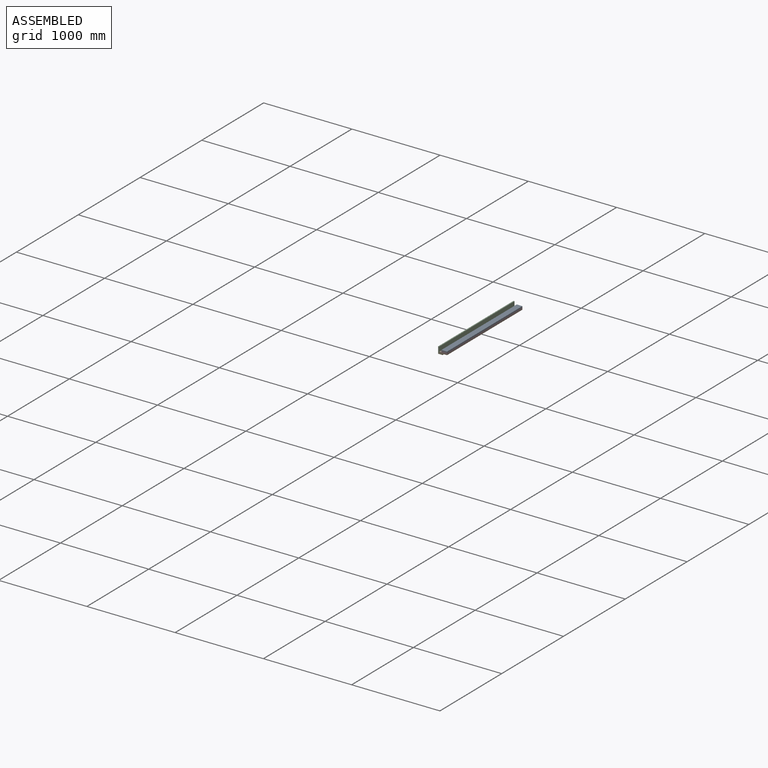
[diagram: assembled view]
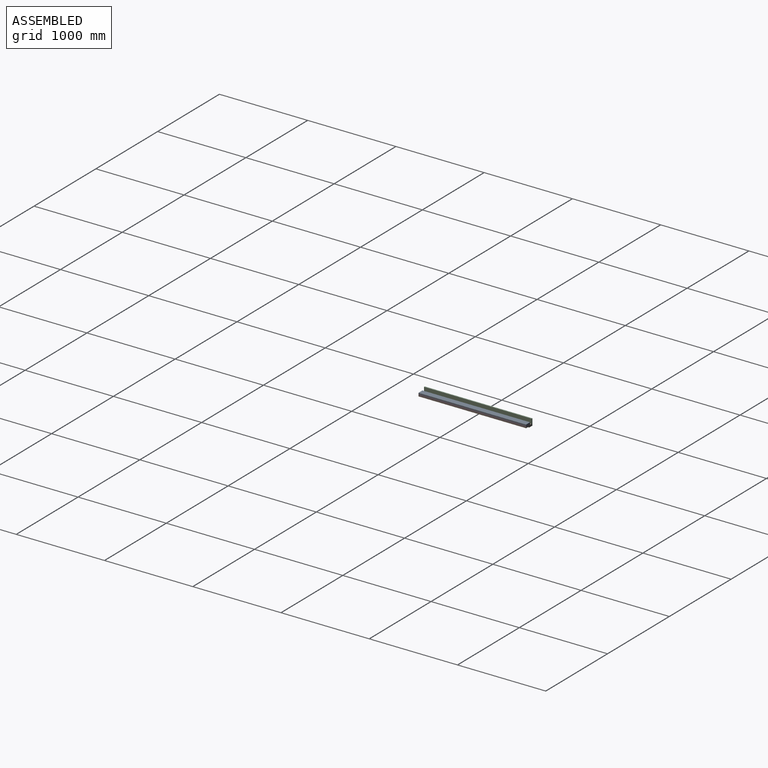
[diagram: assembled view, second angle]
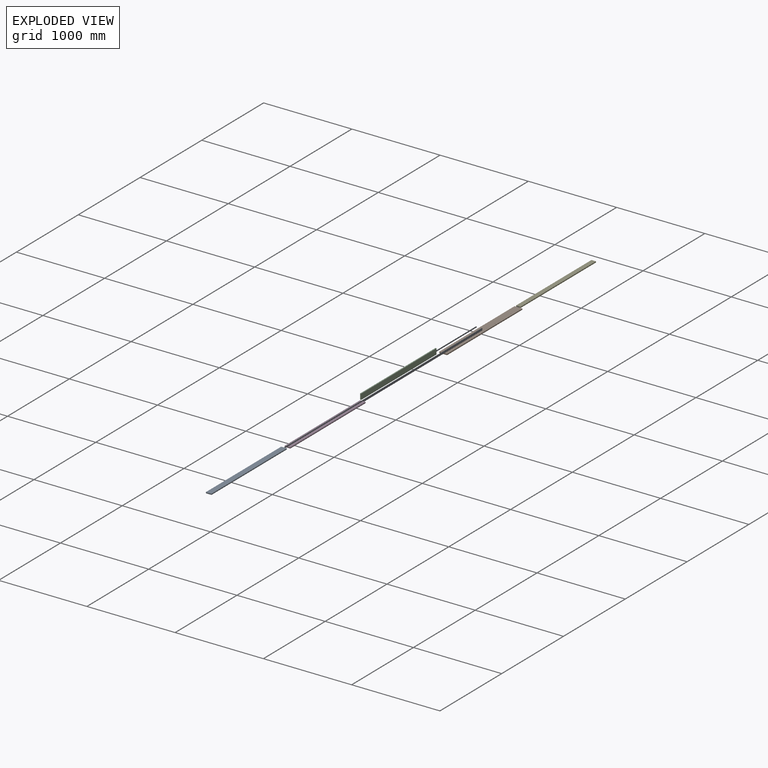
[diagram: exploded view]
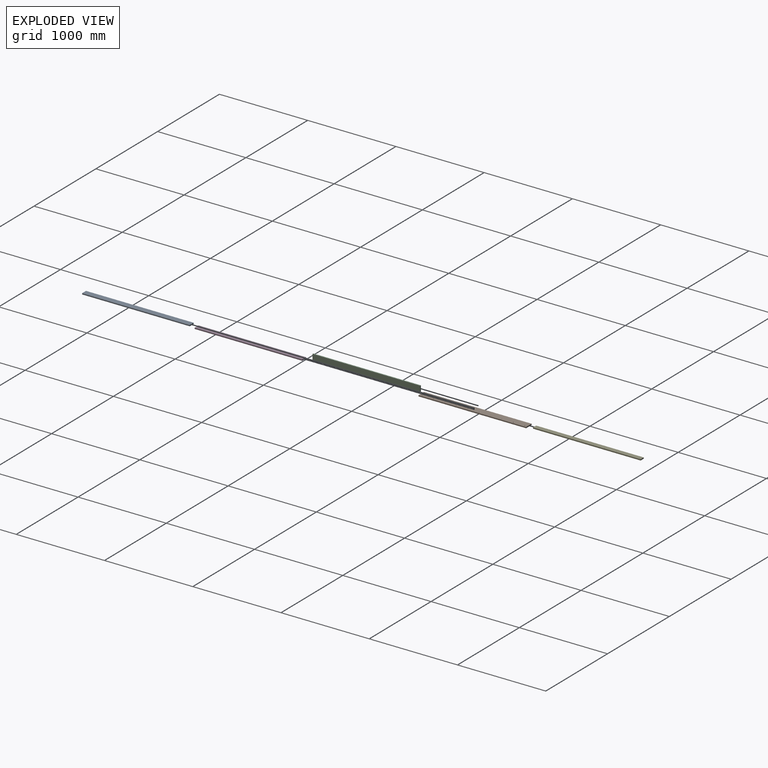
[diagram: exploded view, second angle]
ASSEMBLY  parts=5 mates=4
PART A: 6 faces, bbox 63.5x1219.2x12.3 mm
  f0: plane 1219.2x63.5mm, normal (0,0,1), area 77419.2mm2, adj f1,f3,f4,f5
  f1: plane 1219.2x12.29mm, normal (-1,0,0), area 14988.4mm2, adj f0,f2,f4,f5
  f2: plane 1219.2x63.5mm, normal (0,0,-1), area 77419.2mm2, adj f1,f3,f4,f5
  f3: plane 1219.2x12.29mm, normal (1,0,0), area 14988.4mm2, adj f0,f2,f4,f5
  f4: plane 63.5x12.29mm, normal (0,-1,0), area 780.6mm2, adj f0,f1,f2,f3
  f5: plane 63.5x12.29mm, normal (0,1,0), area 780.6mm2, adj f0,f1,f2,f3
PART B: 36 faces, bbox 88.9x1219.2x12.3 mm
  f0: plane 1219.2x88.9mm, normal (0,0,1), area 108070.2mm2, adj f1,f3,f4,f5,f6,f9,f12,f15
  f1: plane 1219.2x12.29mm, normal (-1,0,0), area 14988.4mm2, adj f0,f2,f4,f5
  f2: plane 1219.2x88.9mm, normal (0,0,-1), area 106956.8mm2, adj f1,f3,f4,f5,f8,f11,f14,f17
  f3: plane 1219.2x12.29mm, normal (1,0,0), area 14988.4mm2, adj f0,f2,f4,f5
  f4: plane 88.9x12.29mm, normal (0,-1,0), area 1092.9mm2, adj f0,f1,f2,f3
  f5: plane 88.9x12.29mm, normal (0,1,0), area 1092.9mm2, adj f0,f1,f2,f3
  f6: cylinder r=3.17mm len=9.12mm, axis (0,0,-1), area 181.9mm2, adj f0,f7
  f7: plane 13.49x13.49mm, normal (0,0,-1), area 111.3mm2, adj f6,f8
  f8: cylinder r=6.75mm len=13.49mm, axis (0,0,-1), area 134.6mm2, adj f2,f7
  f9: cylinder r=3.17mm len=9.12mm, axis (0,0,-1), area 181.9mm2, adj f0,f10
  f10: plane 13.49x13.49mm, normal (0,0,-1), area 111.3mm2, adj f9,f11
  f11: cylinder r=6.75mm len=13.49mm, axis (0,0,-1), area 134.6mm2, adj f2,f10
  f12: cylinder r=3.17mm len=9.12mm, axis (0,0,-1), area 181.9mm2, adj f0,f13
  f13: plane 13.49x13.49mm, normal (0,0,-1), area 111.3mm2, adj f12,f14
  f14: cylinder r=6.75mm len=13.49mm, axis (0,0,-1), area 134.6mm2, adj f2,f13
  f15: cylinder r=3.17mm len=9.12mm, axis (0,0,-1), area 181.9mm2, adj f0,f16
  f16: plane 13.49x13.49mm, normal (0,0,-1), area 111.3mm2, adj f15,f17
  f17: cylinder r=6.75mm len=13.49mm, axis (0,0,-1), area 134.6mm2, adj f2,f16
  f18: cylinder r=3.17mm len=9.12mm, axis (0,0,-1), area 181.9mm2, adj f0,f19
  f19: plane 13.49x13.49mm, normal (0,0,-1), area 111.3mm2, adj f18,f20
  f20: cylinder r=6.75mm len=13.49mm, axis (0,0,-1), area 134.6mm2, adj f2,f19
  f21: cylinder r=3.17mm len=9.12mm, axis (0,0,-1), area 181.9mm2, adj f0,f22
  f22: plane 13.49x13.49mm, normal (0,0,-1), area 111.3mm2, adj f21,f23
  f23: cylinder r=6.75mm len=13.49mm, axis (0,0,-1), area 134.6mm2, adj f2,f22
  f24: cylinder r=3.17mm len=9.12mm, axis (0,0,-1), area 181.9mm2, adj f0,f25
  f25: plane 13.49x13.49mm, normal (0,0,-1), area 111.3mm2, adj f24,f26
  f26: cylinder r=6.75mm len=13.49mm, axis (0,0,-1), area 134.6mm2, adj f2,f25
  f27: cylinder r=3.17mm len=9.12mm, axis (0,0,-1), area 181.9mm2, adj f0,f28
  f28: plane 13.49x13.49mm, normal (0,0,-1), area 111.3mm2, adj f27,f29
  f29: cylinder r=6.75mm len=13.49mm, axis (0,0,-1), area 134.6mm2, adj f2,f28
  f30: cylinder r=3.17mm len=9.12mm, axis (0,0,-1), area 181.9mm2, adj f0,f31
  f31: plane 13.49x13.49mm, normal (0,0,-1), area 111.3mm2, adj f30,f32
  f32: cylinder r=6.75mm len=13.49mm, axis (0,0,-1), area 134.6mm2, adj f2,f31
  f33: cylinder r=3.17mm len=9.12mm, axis (0,0,-1), area 181.9mm2, adj f0,f34
  f34: plane 13.49x13.49mm, normal (0,0,-1), area 111.3mm2, adj f33,f35
  f35: cylinder r=6.75mm len=13.49mm, axis (0,0,-1), area 134.6mm2, adj f2,f34
PART C: 6 faces, bbox 12.3x1219.2x63.5 mm
  f0: plane 1219.2x12.29mm, normal (0,0,1), area 14988.4mm2, adj f1,f3,f4,f5
  f1: plane 1219.2x63.5mm, normal (-1,0,0), area 77419.2mm2, adj f0,f2,f4,f5
  f2: plane 1219.2x12.29mm, normal (0,0,-1), area 14988.4mm2, adj f1,f3,f4,f5
  f3: plane 1219.2x63.5mm, normal (1,0,0), area 77419.2mm2, adj f0,f2,f4,f5
  f4: plane 63.5x12.29mm, normal (0,-1,0), area 780.6mm2, adj f0,f1,f2,f3
  f5: plane 63.5x12.29mm, normal (0,1,0), area 780.6mm2, adj f0,f1,f2,f3
PART D: same geometry as A
PART E: 46 faces, bbox 50.8x1219.2x12.3 mm
  f0: plane 1219.2x50.8mm, normal (0,0,1), area 61777mm2, adj f1,f3,f4,f5,f6,f8,f10,f12
  f1: plane 1219.2x12.29mm, normal (-1,0,0), area 14988.4mm2, adj f0,f2,f4,f5
  f2: plane 1219.2x50.8mm, normal (0,0,-1), area 61530mm2, adj f1,f3,f4,f5,f7,f9,f11,f13
  f3: plane 1219.2x12.29mm, normal (1,0,0), area 14988.4mm2, adj f0,f2,f4,f5
  f4: plane 50.8x12.29mm, normal (0,-1,0), area 624.5mm2, adj f0,f1,f2,f3
  f5: plane 50.8x12.29mm, normal (0,1,0), area 624.5mm2, adj f0,f1,f2,f3
  f6: cylinder r=1.59mm len=11.2mm, axis (0,0,-1), area 111.7mm2, adj f0,f7
  f7: cone r=1.59mm half-angle=41deg, axis (0,0,-1), area 18.8mm2, adj f2,f6
  f8: cylinder r=1.59mm len=11.2mm, axis (0,0,-1), area 111.7mm2, adj f0,f9
  f9: cone r=1.59mm half-angle=41deg, axis (0,0,-1), area 18.8mm2, adj f2,f8
  f10: cylinder r=1.59mm len=11.2mm, axis (0,0,-1), area 111.7mm2, adj f0,f11
  f11: cone r=1.59mm half-angle=41deg, axis (0,0,-1), area 18.8mm2, adj f2,f10
  f12: cylinder r=1.59mm len=11.2mm, axis (0,0,-1), area 111.7mm2, adj f0,f13
  f13: cone r=1.59mm half-angle=41deg, axis (0,0,-1), area 18.8mm2, adj f2,f12
  f14: cylinder r=1.59mm len=11.2mm, axis (0,0,-1), area 111.7mm2, adj f0,f15
  f15: cone r=1.59mm half-angle=41deg, axis (0,0,-1), area 18.8mm2, adj f2,f14
  f16: cylinder r=1.59mm len=11.2mm, axis (0,0,-1), area 111.7mm2, adj f0,f17
  f17: cone r=1.59mm half-angle=41deg, axis (0,0,-1), area 18.8mm2, adj f2,f16
  f18: cylinder r=1.59mm len=11.2mm, axis (0,0,-1), area 111.7mm2, adj f0,f19
  f19: cone r=1.59mm half-angle=41deg, axis (0,0,-1), area 18.8mm2, adj f2,f18
  f20: cylinder r=1.59mm len=11.2mm, axis (0,0,-1), area 111.7mm2, adj f0,f21
  f21: cone r=1.59mm half-angle=41deg, axis (0,0,-1), area 18.8mm2, adj f2,f20
  f22: cylinder r=1.59mm len=11.2mm, axis (0,0,-1), area 111.7mm2, adj f0,f23
  f23: cone r=1.59mm half-angle=41deg, axis (0,0,-1), area 18.8mm2, adj f2,f22
  f24: cylinder r=1.59mm len=11.2mm, axis (0,0,-1), area 111.7mm2, adj f0,f25
  f25: cone r=1.59mm half-angle=41deg, axis (0,0,-1), area 18.8mm2, adj f2,f24
  f26: cylinder r=1.59mm len=11.2mm, axis (0,0,-1), area 111.7mm2, adj f0,f27
  f27: cone r=1.59mm half-angle=41deg, axis (0,0,-1), area 18.8mm2, adj f2,f26
  f28: cylinder r=1.59mm len=11.2mm, axis (0,0,-1), area 111.7mm2, adj f0,f29
  f29: cone r=1.59mm half-angle=41deg, axis (0,0,-1), area 18.8mm2, adj f2,f28
  f30: cylinder r=1.59mm len=11.2mm, axis (0,0,-1), area 111.7mm2, adj f0,f31
  f31: cone r=1.59mm half-angle=41deg, axis (0,0,-1), area 18.8mm2, adj f2,f30
  f32: cylinder r=1.59mm len=11.2mm, axis (0,0,-1), area 111.7mm2, adj f0,f33
  f33: cone r=1.59mm half-angle=41deg, axis (0,0,-1), area 18.8mm2, adj f2,f32
  f34: cylinder r=1.59mm len=11.2mm, axis (0,0,-1), area 111.7mm2, adj f0,f35
  f35: cone r=1.59mm half-angle=41deg, axis (0,0,-1), area 18.8mm2, adj f2,f34
  f36: cylinder r=1.59mm len=11.2mm, axis (0,0,-1), area 111.7mm2, adj f0,f37
  f37: cone r=1.59mm half-angle=41deg, axis (0,0,-1), area 18.8mm2, adj f2,f36
  f38: cylinder r=1.59mm len=11.2mm, axis (0,0,-1), area 111.7mm2, adj f0,f39
  f39: cone r=1.59mm half-angle=41deg, axis (0,0,-1), area 18.8mm2, adj f2,f38
  f40: cylinder r=1.59mm len=11.2mm, axis (0,0,-1), area 111.7mm2, adj f0,f41
  f41: cone r=1.59mm half-angle=41deg, axis (0,0,-1), area 18.8mm2, adj f2,f40
  f42: cylinder r=1.59mm len=11.2mm, axis (0,0,-1), area 111.7mm2, adj f0,f43
  f43: cone r=1.59mm half-angle=41deg, axis (0,0,-1), area 18.8mm2, adj f2,f42
  f44: cylinder r=1.59mm len=11.2mm, axis (0,0,-1), area 111.7mm2, adj f0,f45
  f45: cone r=1.59mm half-angle=41deg, axis (0,0,-1), area 18.8mm2, adj f2,f44
PLACE A t=(-43.55,0,-9.78)mm
PLACE B t=(-43.55,0,-5.88)mm
PLACE C at identity
PLACE D t=(-43.55,0,-22.07)mm
PLACE E t=(-29.67,0,3.95)mm
MATE planar B.f4 <-> C.f4  axis (0,-1,0) through (-55.47,-1219.2,-46.66)mm
MATE planar A.f4 <-> D.f4  axis (0,-1,0) through (33.43,-1219.2,-22.07)mm
MATE planar E.f4 <-> C.f4  axis (0,-1,0) through (-67.76,-1219.2,-46.66)mm
MATE planar D.f4 <-> B.f4  axis (0,-1,0) through (33.43,-1219.2,-34.36)mm
